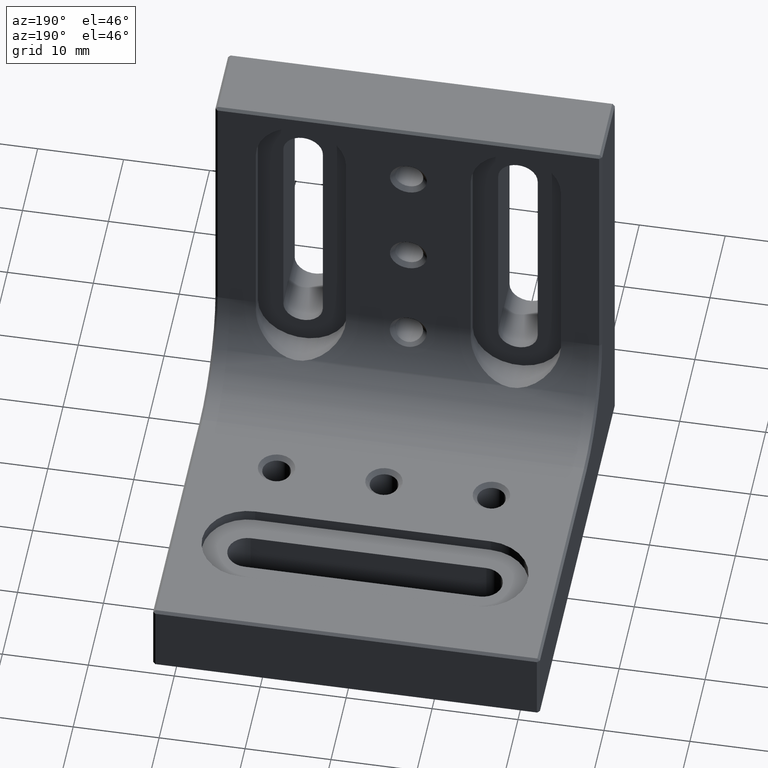
[diagram: clean part render]
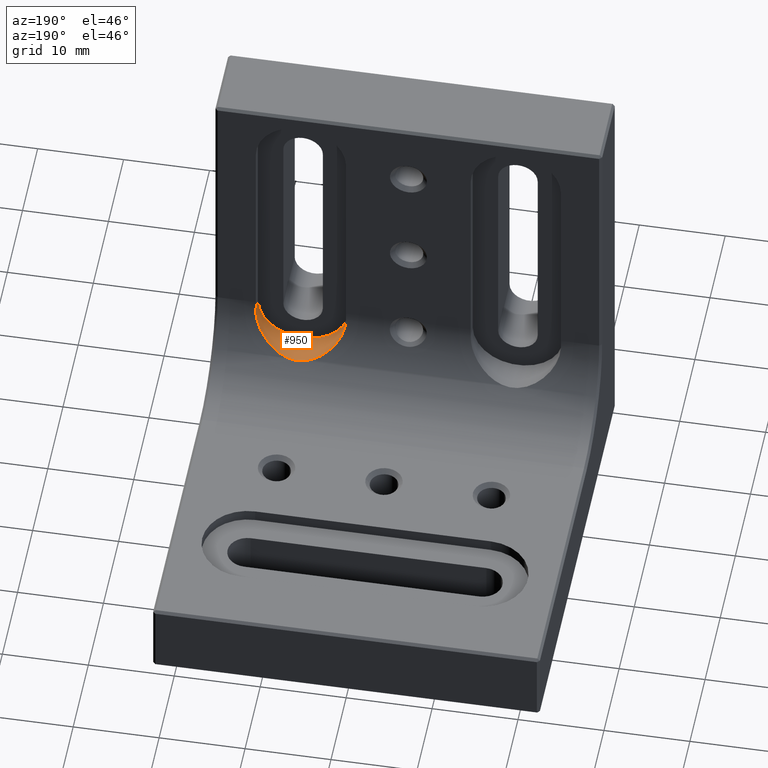
[diagram: same view with one face highlighted and labeled with its STEP entity id]
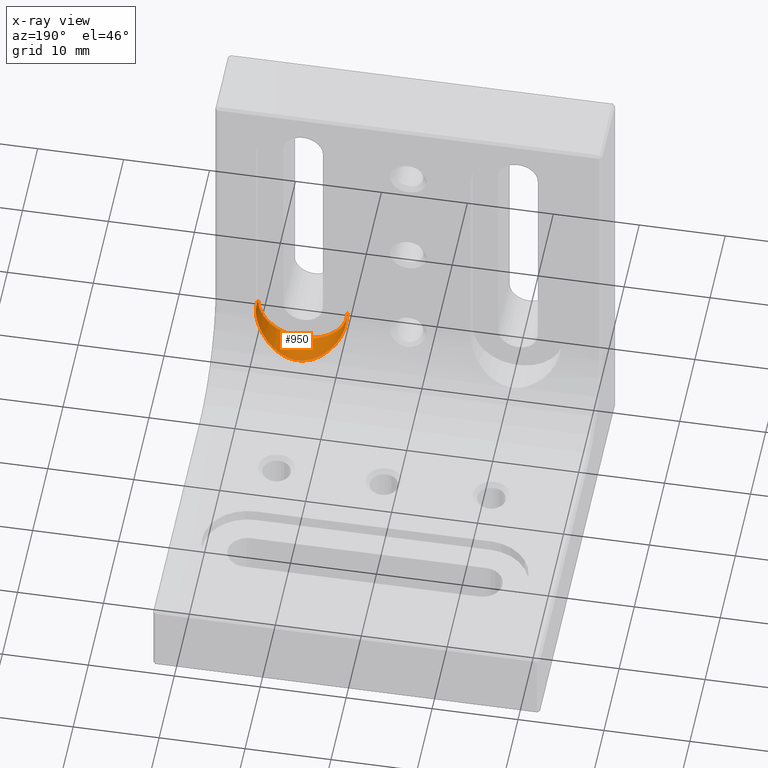
[diagram: x-ray of the same camera — body ghosted, the highlighted face saturated]
A machine part, auxiliary view. The second image highlights one B-rep face of the part: STEP entity #950.
The next image is the same camera in x-ray: the body ghosted, the highlighted face saturated — about 0% of this face is hidden behind the body in this view.
In plain terms, the highlighted cylindrical surface (partial cylindrical patch) has radius 5.25 mm, axis along (-0, 1, -0).
Its self-contained STEP definition (entity closure, byte-faithful):
#97 = LINE ( 'NONE', #941, #282 ) ;
#151 = CARTESIAN_POINT ( 'NONE',  ( 17.75000000000000355, 7.500000000000000000, 17.78999999999999915 ) ) ;
#153 = CARTESIAN_POINT ( 'NONE',  ( 9.830262403570381835, 10.64126356667555484, 13.25691596540233874 ) ) ;
#172 = CARTESIAN_POINT ( 'NONE',  ( 7.321681961952192452, 9.098842714955608812, 16.90806192853562351 ) ) ;
#187 = CARTESIAN_POINT ( 'NONE',  ( 8.333237051948049867, 9.876814206245750682, 14.57856026078860978 ) ) ;
#198 = DIRECTION ( 'NONE',  ( 0.000000000000000000, -1.000000000000000000, -1.224646799147353454E-16 ) ) ;
#214 = VECTOR ( 'NONE', #1262, 1000.000000000000000 ) ;
#223 = CARTESIAN_POINT ( 'NONE',  ( 7.596921809555468030, 9.357459637393372276, 15.90540373703046306 ) ) ;
#282 = VECTOR ( 'NONE', #3220, 1000.000000000000000 ) ;
#452 = CARTESIAN_POINT ( 'NONE',  ( 7.249999999999992895, 8.961795936890805336, 17.78999999999999915 ) ) ;
#465 = FACE_OUTER_BOUND ( 'NONE', #989, .T. ) ;
#470 = CARTESIAN_POINT ( 'NONE',  ( 7.537162431420297182, 9.307635266939071172, 16.06875884686546030 ) ) ;
#486 = CARTESIAN_POINT ( 'NONE',  ( 16.45949435896853075, 10.00308145208230215, 14.32638021764552327 ) ) ;
#498 = CARTESIAN_POINT ( 'NONE',  ( 8.548003191861003103, 10.00743111087753157, 14.31806745517764057 ) ) ;
#518 = CARTESIAN_POINT ( 'NONE',  ( 17.67867809741985141, 9.098391797940996284, 16.91036329719471354 ) ) ;
#559 = CARTESIAN_POINT ( 'NONE',  ( 17.70508661622474023, 9.064944058504023516, 17.08255339719457666 ) ) ;
#598 = CARTESIAN_POINT ( 'NONE',  ( 17.57488488119874859, 9.210921543122092103, 16.40150667806677731 ) ) ;
#649 = EDGE_CURVE ( 'NONE', #3111, #1513, #3349, .T. ) ;
#733 = CARTESIAN_POINT ( 'NONE',  ( 12.86256744171844169, 11.18304831116774167, 12.54007416384138374 ) ) ;
#738 = ORIENTED_EDGE ( 'NONE', *, *, #3388, .T. ) ;
#763 = CYLINDRICAL_SURFACE ( 'NONE', #2755, 5.250000000000004441 ) ;
#769 = CARTESIAN_POINT ( 'NONE',  ( 9.016561455624794164, 10.26573045186713884, 13.84814126649639832 ) ) ;
#780 = DIRECTION ( 'NONE',  ( 0.000000000000000000, 0.000000000000000000, 1.000000000000000000 ) ) ;
#799 = CARTESIAN_POINT ( 'NONE',  ( 7.434615459693820760, 9.216229134181880056, 16.39920623449153680 ) ) ;
#941 = CARTESIAN_POINT ( 'NONE',  ( 17.75000000000000355, -37.40401048016107666, 17.78999999999999915 ) ) ;
#950 = ADVANCED_FACE ( 'NONE', ( #465 ), #763, .F. ) ;
#989 = EDGE_LOOP ( 'NONE', ( #1064, #738, #1824, #2498 ) ) ;
#1035 = CARTESIAN_POINT ( 'NONE',  ( 15.17677586026869108, 10.63837451954872826, 13.26116750677103795 ) ) ;
#1051 = CARTESIAN_POINT ( 'NONE',  ( 17.47247367658843231, 9.302729019381507314, 16.07084789777194800 ) ) ;
#1052 = CARTESIAN_POINT ( 'NONE',  ( 17.75000000000000355, 8.961795936890805336, 17.78999999999999915 ) ) ;
#1064 = ORIENTED_EDGE ( 'NONE', *, *, #3304, .F. ) ;
#1093 = CARTESIAN_POINT ( 'NONE',  ( 11.09560033832602066, 11.03141571838273371, 12.72831026538218424 ) ) ;
#1143 = CARTESIAN_POINT ( 'NONE',  ( 17.74999999999999645, 8.981779982566365561, 17.61107610456736339 ) ) ;
#1145 = CARTESIAN_POINT ( 'NONE',  ( 7.249999999999992895, 8.961795936890805336, 17.78999999999999915 ) ) ;
#1168 = CARTESIAN_POINT ( 'NONE',  ( 7.249999999999992895, 7.500000000000000000, 17.78999999999999915 ) ) ;
#1262 = DIRECTION ( 'NONE',  ( -0.000000000000000000, 1.000000000000000000, -0.000000000000000000 ) ) ;
#1289 = VERTEX_POINT ( 'NONE', #1168 ) ;
#1317 = CARTESIAN_POINT ( 'NONE',  ( 12.13958354293210817, 11.18317037623879706, 12.53992605647932734 ) ) ;
#1330 = CARTESIAN_POINT ( 'NONE',  ( 16.67273453962477703, 9.873052115425691611, 14.58654535428282983 ) ) ;
#1346 = CARTESIAN_POINT ( 'NONE',  ( 7.391463480978305078, 9.174375668233489378, 16.56703348414958654 ) ) ;
#1369 = CARTESIAN_POINT ( 'NONE',  ( 9.271943446329961702, 10.39464473007910428, 13.63596574582948939 ) ) ;
#1513 = VERTEX_POINT ( 'NONE', #1052 ) ;
#1604 = CARTESIAN_POINT ( 'NONE',  ( 7.249999999999995559, 8.981619923822671936, 17.61250916443846748 ) ) ;
#1623 = CARTESIAN_POINT ( 'NONE',  ( 12.49999999999999645, 7.500000000000000000, 17.78999999999999915 ) ) ;
#1630 = CARTESIAN_POINT ( 'NONE',  ( 7.796972552547371649, 9.514816261584487123, 15.43170652959534195 ) ) ;
#1644 = CARTESIAN_POINT ( 'NONE',  ( 10.60034490881950475, 10.90500706680369269, 12.89275278380834067 ) ) ;
#1824 = ORIENTED_EDGE ( 'NONE', *, *, #3637, .T. ) ;
#1850 = AXIS2_PLACEMENT_3D ( 'NONE', #1623, #198, #2758 ) ;
#1892 = CARTESIAN_POINT ( 'NONE',  ( 14.40231788702292626, 10.90424338004006444, 12.89376308853185726 ) ) ;
#1920 = VERTEX_POINT ( 'NONE', #151 ) ;
#1930 = CARTESIAN_POINT ( 'NONE',  ( 10.12852952158450748, 10.75664276233968764, 13.09367092105081376 ) ) ;
#2093 = CARTESIAN_POINT ( 'NONE',  ( 7.249999999999992895, -37.40401048016107666, 17.78999999999999915 ) ) ;
#2169 = CARTESIAN_POINT ( 'NONE',  ( 11.26769101727525957, 11.06681707892227351, 12.68362417625606753 ) ) ;
#2234 = CARTESIAN_POINT ( 'NONE',  ( 13.73435563762722289, 11.06642362335527885, 12.68411939990629556 ) ) ;
#2290 = CARTESIAN_POINT ( 'NONE',  ( 17.75000000000000355, 8.961795936890805336, 17.78999999999999915 ) ) ;
#2304 = CARTESIAN_POINT ( 'NONE',  ( 17.74075315177686463, 9.006697217524525456, 17.43234963950284921 ) ) ;
#2463 = CARTESIAN_POINT ( 'NONE',  ( 11.78635830322314781, 11.15242039283450914, 12.57676171103758733 ) ) ;
#2476 = CARTESIAN_POINT ( 'NONE',  ( 17.04471939525888047, 9.628617507889320137, 15.14059236362120409 ) ) ;
#2498 = ORIENTED_EDGE ( 'NONE', *, *, #649, .F. ) ;
#2514 = CARTESIAN_POINT ( 'NONE',  ( 7.259140741266149277, 9.006529535375307205, 17.43334009019261188 ) ) ;
#2618 = CIRCLE ( 'NONE', #1850, 5.250000000000004441 ) ;
#2744 = CARTESIAN_POINT ( 'NONE',  ( 15.73239598293186781, 10.39250351052352173, 13.63944955850798202 ) ) ;
#2755 = AXIS2_PLACEMENT_3D ( 'NONE', #3636, #3585, #780 ) ;
#2758 = DIRECTION ( 'NONE',  ( 0.000000000000000000, -1.652117596168386277E-16, 1.000000000000000000 ) ) ;
#2762 = CARTESIAN_POINT ( 'NONE',  ( 10.76209727839122543, 10.95048436964155059, 12.83291058084784630 ) ) ;
#3013 = CARTESIAN_POINT ( 'NONE',  ( 14.87584715269885294, 10.75511693135851132, 13.09578576830428709 ) ) ;
#3050 = CARTESIAN_POINT ( 'NONE',  ( 13.21580614839138690, 11.15217349166308658, 12.57706189101133987 ) ) ;
#3111 = VERTEX_POINT ( 'NONE', #1145 ) ;
#3220 = DIRECTION ( 'NONE',  ( -0.000000000000000000, 1.000000000000000000, -0.000000000000000000 ) ) ;
#3294 = CARTESIAN_POINT ( 'NONE',  ( 7.958050361634786185, 9.630595705346559399, 15.13557875490742610 ) ) ;
#3304 = EDGE_CURVE ( 'NONE', #1289, #3111, #3513, .T. ) ;
#3310 = CARTESIAN_POINT ( 'NONE',  ( 15.98819387464962460, 10.26331998139761836, 13.85213750007980771 ) ) ;
#3349 = B_SPLINE_CURVE_WITH_KNOTS ( 'NONE', 3,
 ( #452, #1604, #2514, #3642, #172, #1346, #799, #470, #223, #1630, #3294, #187, #498, #769, #1369, #153, #1930, #1644, #2762, #1093, #2169, #2463, #1317, #733, #3050, #2234, #3362, #3589, #1892, #3013, #1035, #2744, #3310, #486, #1330, #2476, #3604, #1051, #598, #518, #559, #2304, #1143, #2290 ),
 .UNSPECIFIED., .F., .F.,
 ( 4, 2, 2, 2, 2, 2, 2, 2, 2, 2, 2, 2, 2, 2, 2, 2, 2, 2, 2, 2, 2, 4 ),
 ( 0.008278306886016138094, 0.008811194253330144679, 0.009344081620644151265, 0.009876968987958159585, 0.01040985635527216617, 0.01147563108990018628, 0.01254140582452820812, 0.01360718055915622823, 0.01467295529378424834, 0.01520584266109826013, 0.01573873002841227192, 0.01680450476304030244, 0.01787027949766833296, 0.01840316686498234128, 0.01893605423229635654, 0.02000182896692438012, 0.02106760370155240369, 0.02213337843618042727, 0.02319915317080845085, 0.02426492790543647096, 0.02479781527275047581, 0.02533070264006448413 ),
 .UNSPECIFIED. ) ;
#3362 = CARTESIAN_POINT ( 'NONE',  ( 13.90631645228941515, 11.03100248056350452, 12.72883543086806135 ) ) ;
#3388 = EDGE_CURVE ( 'NONE', #1289, #1920, #2618, .T. ) ;
#3513 = LINE ( 'NONE', #2093, #214 ) ;
#3585 = DIRECTION ( 'NONE',  ( -0.000000000000000000, 1.000000000000000000, -0.000000000000000000 ) ) ;
#3589 = CARTESIAN_POINT ( 'NONE',  ( 14.24016529519287566, 10.94988274516900439, 12.83369719395367170 ) ) ;
#3604 = CARTESIAN_POINT ( 'NONE',  ( 17.20544646721939230, 9.513056008991030765, 15.43633223264356680 ) ) ;
#3636 = CARTESIAN_POINT ( 'NONE',  ( 12.49999999999999645, -37.40401048016107666, 17.78999999999999915 ) ) ;
#3637 = EDGE_CURVE ( 'NONE', #1920, #1513, #97, .T. ) ;
#3642 = CARTESIAN_POINT ( 'NONE',  ( 7.295050148497176146, 9.065161802911806177, 17.08126231618399160 ) ) ;